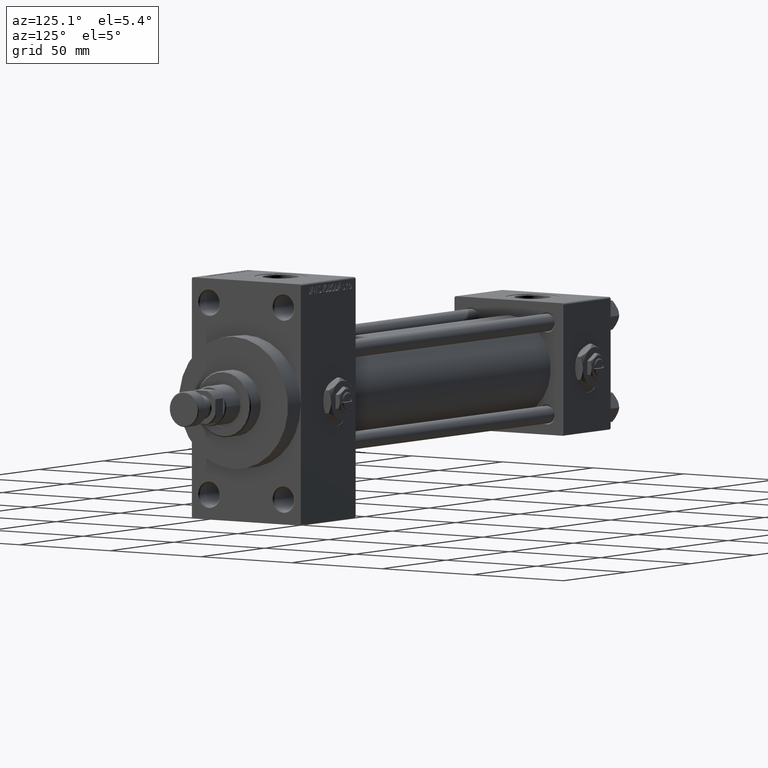
[diagram: clean part render]
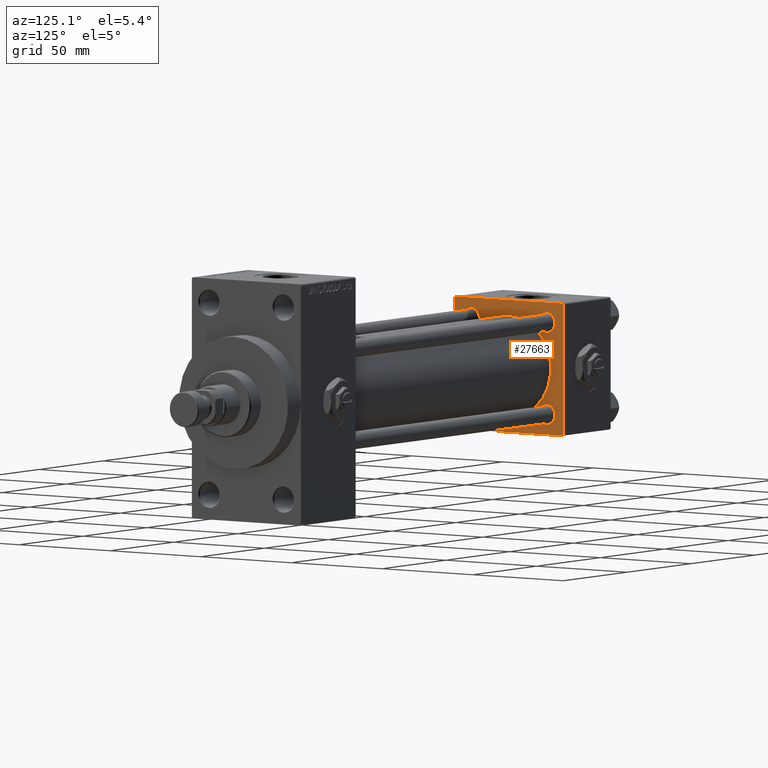
[diagram: same view with one face highlighted and labeled with its STEP entity id]
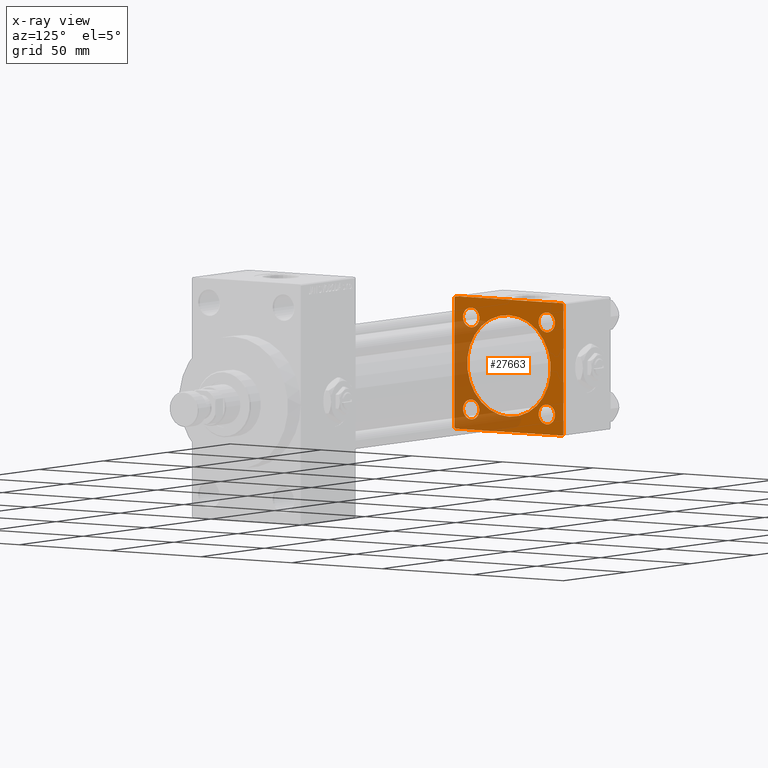
[diagram: x-ray of the same camera — body ghosted, the highlighted face saturated]
A machine part, auxiliary view. The second image highlights one B-rep face of the part: STEP entity #27663.
The next image is the same camera in x-ray: the body ghosted, the highlighted face saturated — about 37% of this face is hidden behind the body in this view.
In plain terms, the highlighted planar face has unit normal (-1, 0, 0).
Its self-contained STEP definition (entity closure, byte-faithful):
#1862 = VECTOR ( 'NONE', #42864, 1000.000000000000000 ) ;
#1875 = DIRECTION ( 'NONE',  ( 1.000000000000000000, -0.000000000000000000, 0.000000000000000000 ) ) ;
#2571 = PLANE ( 'NONE',  #26442 ) ;
#2666 = DIRECTION ( 'NONE',  ( 0.000000000000000000, 0.000000000000000000, 1.000000000000000000 ) ) ;
#2782 = ORIENTED_EDGE ( 'NONE', *, *, #6886, .T. ) ;
#2973 = CIRCLE ( 'NONE', #35108, 4.500000000000031974 ) ;
#4167 = VERTEX_POINT ( 'NONE', #17112 ) ;
#4597 = CIRCLE ( 'NONE', #5378, 4.500000000000031974 ) ;
#4674 = CARTESIAN_POINT ( 'NONE',  ( 37.00000000000000000, 20.84999999999999787, -20.85000000000000142 ) ) ;
#4755 = EDGE_CURVE ( 'NONE', #29886, #16751, #12238, .T. ) ;
#5098 = ORIENTED_EDGE ( 'NONE', *, *, #10984, .T. ) ;
#5334 = DIRECTION ( 'NONE',  ( 0.000000000000000000, 0.000000000000000000, -1.000000000000000000 ) ) ;
#5378 = AXIS2_PLACEMENT_3D ( 'NONE', #49363, #10878, #30240 ) ;
#5836 = VECTOR ( 'NONE', #5334, 1000.000000000000000 ) ;
#5938 = VERTEX_POINT ( 'NONE', #37358 ) ;
#5995 = LINE ( 'NONE', #36687, #35932 ) ;
#6019 = ORIENTED_EDGE ( 'NONE', *, *, #45394, .T. ) ;
#6268 = CIRCLE ( 'NONE', #48027, 4.500000000000031974 ) ;
#6327 = DIRECTION ( 'NONE',  ( -1.000000000000000000, 0.000000000000000000, -0.000000000000000000 ) ) ;
#6480 = VECTOR ( 'NONE', #7021, 1000.000000000000114 ) ;
#6886 = EDGE_CURVE ( 'NONE', #18486, #7325, #15748, .T. ) ;
#6922 = VERTEX_POINT ( 'NONE', #15018 ) ;
#7021 = DIRECTION ( 'NONE',  ( -0.000000000000000000, -0.7071067811865474617, -0.7071067811865474617 ) ) ;
#7128 = EDGE_LOOP ( 'NONE', ( #6019, #19061 ) ) ;
#7325 = VERTEX_POINT ( 'NONE', #47148 ) ;
#7458 = EDGE_CURVE ( 'NONE', #31073, #36544, #43079, .T. ) ;
#9094 = VERTEX_POINT ( 'NONE', #32859 ) ;
#9263 = EDGE_CURVE ( 'NONE', #7325, #18486, #2973, .T. ) ;
#9334 = EDGE_CURVE ( 'NONE', #15330, #9094, #4597, .T. ) ;
#9602 = FACE_BOUND ( 'NONE', #7128, .T. ) ;
#9925 = AXIS2_PLACEMENT_3D ( 'NONE', #9947, #21027, #2666 ) ;
#9947 = CARTESIAN_POINT ( 'NONE',  ( 37.00000000000000711, -2.602085213965210642E-15, 0.000000000000000000 ) ) ;
#10103 = CARTESIAN_POINT ( 'NONE',  ( 37.00000000000000000, 0.000000000000000000, 0.000000000000000000 ) ) ;
#10344 = DIRECTION ( 'NONE',  ( -1.000000000000000000, 0.000000000000000000, -0.000000000000000000 ) ) ;
#10389 = EDGE_LOOP ( 'NONE', ( #28075, #38370 ) ) ;
#10547 = EDGE_CURVE ( 'NONE', #49536, #29886, #5995, .T. ) ;
#10681 = CARTESIAN_POINT ( 'NONE',  ( 37.00000000000000000, -20.84999999999999076, -25.35000000000003695 ) ) ;
#10790 = CARTESIAN_POINT ( 'NONE',  ( 37.00000000000000000, -30.00000000000000000, 29.49999999999999289 ) ) ;
#10878 = DIRECTION ( 'NONE',  ( -1.000000000000000000, 0.000000000000000000, -0.000000000000000000 ) ) ;
#10984 = EDGE_CURVE ( 'NONE', #36544, #31073, #6268, .T. ) ;
#11700 = EDGE_LOOP ( 'NONE', ( #30850, #2782 ) ) ;
#11935 = CARTESIAN_POINT ( 'NONE',  ( 37.00000000000000000, -20.84999999999999076, 25.35000000000003695 ) ) ;
#12012 = CIRCLE ( 'NONE', #46521, 4.500000000000031974 ) ;
#12238 = LINE ( 'NONE', #27574, #31774 ) ;
#12301 = VECTOR ( 'NONE', #21327, 1000.000000000000000 ) ;
#12485 = ORIENTED_EDGE ( 'NONE', *, *, #7458, .T. ) ;
#13422 = CARTESIAN_POINT ( 'NONE',  ( 37.00000000000000711, -2.602085213965210642E-15, 0.000000000000000000 ) ) ;
#13831 = LINE ( 'NONE', #40262, #31586 ) ;
#14118 = EDGE_CURVE ( 'NONE', #5938, #17546, #12012, .T. ) ;
#14543 = CARTESIAN_POINT ( 'NONE',  ( 37.00000000000000000, -20.84999999999999076, -16.34999999999997300 ) ) ;
#15018 = CARTESIAN_POINT ( 'NONE',  ( 37.00000000000000000, 29.49999999999997868, -30.00000000000000000 ) ) ;
#15330 = VERTEX_POINT ( 'NONE', #11935 ) ;
#15479 = DIRECTION ( 'NONE',  ( -1.000000000000000000, 0.000000000000000000, -0.000000000000000000 ) ) ;
#15748 = CIRCLE ( 'NONE', #43860, 4.500000000000031974 ) ;
#16013 = DIRECTION ( 'NONE',  ( 0.000000000000000000, -1.000000000000000000, -1.156482317317871725E-16 ) ) ;
#16751 = VERTEX_POINT ( 'NONE', #32733 ) ;
#17112 = CARTESIAN_POINT ( 'NONE',  ( 37.00000000000000000, -30.00000000000000000, 29.49999999999999289 ) ) ;
#17542 = CARTESIAN_POINT ( 'NONE',  ( 37.00000000000000000, 29.99999999999999289, -30.00000000000000000 ) ) ;
#17546 = VERTEX_POINT ( 'NONE', #29451 ) ;
#18248 = CARTESIAN_POINT ( 'NONE',  ( 37.00000000000000000, -20.84999999999999076, -20.85000000000000497 ) ) ;
#18325 = ORIENTED_EDGE ( 'NONE', *, *, #42242, .T. ) ;
#18346 = VERTEX_POINT ( 'NONE', #42132 ) ;
#18486 = VERTEX_POINT ( 'NONE', #39607 ) ;
#18544 = AXIS2_PLACEMENT_3D ( 'NONE', #29450, #10344, #38001 ) ;
#18752 = CIRCLE ( 'NONE', #9925, 23.00000000000000000 ) ;
#19061 = ORIENTED_EDGE ( 'NONE', *, *, #9334, .T. ) ;
#20222 = CARTESIAN_POINT ( 'NONE',  ( 37.00000000000000000, 29.99999999999999289, 30.00000000000000000 ) ) ;
#20688 = FACE_BOUND ( 'NONE', #11700, .T. ) ;
#20761 = CARTESIAN_POINT ( 'NONE',  ( 37.00000000000000000, 29.99999999999999289, -29.50000000000000000 ) ) ;
#20960 = CIRCLE ( 'NONE', #29773, 4.500000000000031974 ) ;
#21027 = DIRECTION ( 'NONE',  ( 1.000000000000000000, -0.000000000000000000, 0.000000000000000000 ) ) ;
#21327 = DIRECTION ( 'NONE',  ( 0.000000000000000000, -1.000000000000000000, -1.156482317317871725E-16 ) ) ;
#21391 = AXIS2_PLACEMENT_3D ( 'NONE', #34532, #41331, #22458 ) ;
#22200 = CARTESIAN_POINT ( 'NONE',  ( 37.00000000000000000, -30.00000000000000000, -29.50000000000001776 ) ) ;
#22371 = EDGE_LOOP ( 'NONE', ( #5098, #12485 ) ) ;
#22458 = DIRECTION ( 'NONE',  ( 0.000000000000000000, 0.000000000000000000, 1.000000000000000000 ) ) ;
#22710 = VECTOR ( 'NONE', #38895, 999.9999999999998863 ) ;
#22733 = VERTEX_POINT ( 'NONE', #22200 ) ;
#22998 = ORIENTED_EDGE ( 'NONE', *, *, #39684, .T. ) ;
#23334 = CARTESIAN_POINT ( 'NONE',  ( 37.00000000000000000, -20.84999999999999076, 20.85000000000000497 ) ) ;
#23602 = CARTESIAN_POINT ( 'NONE',  ( 37.00000000000000711, -2.602085213965210642E-15, 23.00000000000000000 ) ) ;
#23604 = DIRECTION ( 'NONE',  ( -1.000000000000000000, 0.000000000000000000, -0.000000000000000000 ) ) ;
#23838 = VERTEX_POINT ( 'NONE', #29151 ) ;
#24938 = FACE_BOUND ( 'NONE', #41999, .T. ) ;
#25173 = CARTESIAN_POINT ( 'NONE',  ( 37.00000000000000000, -30.00000000000000000, 29.99999999999999289 ) ) ;
#25421 = LINE ( 'NONE', #25173, #5836 ) ;
#25686 = DIRECTION ( 'NONE',  ( -0.000000000000000000, 0.000000000000000000, 1.000000000000000000 ) ) ;
#25792 = CIRCLE ( 'NONE', #32231, 23.00000000000000000 ) ;
#26442 = AXIS2_PLACEMENT_3D ( 'NONE', #10103, #6327, #25686 ) ;
#26542 = CIRCLE ( 'NONE', #18544, 4.500000000000031974 ) ;
#27574 = CARTESIAN_POINT ( 'NONE',  ( 37.00000000000000000, 29.99999999999999289, 30.00000000000000000 ) ) ;
#27663 = ADVANCED_FACE ( 'NONE', ( #39808, #20688, #9602, #24938, #40301, #33484 ), #2571, .F. ) ;
#28075 = ORIENTED_EDGE ( 'NONE', *, *, #46492, .F. ) ;
#29151 = CARTESIAN_POINT ( 'NONE',  ( 37.00000000000000711, 2.146024240737016609E-16, -23.00000000000000000 ) ) ;
#29329 = DIRECTION ( 'NONE',  ( 0.000000000000000000, 0.000000000000000000, 1.000000000000000000 ) ) ;
#29450 = CARTESIAN_POINT ( 'NONE',  ( 37.00000000000000000, 20.84999999999999787, 20.85000000000000142 ) ) ;
#29451 = CARTESIAN_POINT ( 'NONE',  ( 37.00000000000000000, 20.84999999999999787, 25.35000000000003340 ) ) ;
#29773 = AXIS2_PLACEMENT_3D ( 'NONE', #23334, #38687, #29329 ) ;
#29886 = VERTEX_POINT ( 'NONE', #43494 ) ;
#30145 = ORIENTED_EDGE ( 'NONE', *, *, #44839, .T. ) ;
#30240 = DIRECTION ( 'NONE',  ( 0.000000000000000000, 0.000000000000000000, 1.000000000000000000 ) ) ;
#30615 = CARTESIAN_POINT ( 'NONE',  ( 37.00000000000000000, 20.84999999999999787, -20.85000000000000142 ) ) ;
#30850 = ORIENTED_EDGE ( 'NONE', *, *, #9263, .T. ) ;
#31058 = VERTEX_POINT ( 'NONE', #49505 ) ;
#31073 = VERTEX_POINT ( 'NONE', #14543 ) ;
#31341 = LINE ( 'NONE', #20761, #22710 ) ;
#31586 = VECTOR ( 'NONE', #32948, 1000.000000000000114 ) ;
#31774 = VECTOR ( 'NONE', #16013, 1000.000000000000000 ) ;
#32231 = AXIS2_PLACEMENT_3D ( 'NONE', #13422, #1875, #36326 ) ;
#32733 = CARTESIAN_POINT ( 'NONE',  ( 37.00000000000000000, -29.49999999999998579, 29.99999999999999289 ) ) ;
#32838 = ORIENTED_EDGE ( 'NONE', *, *, #10547, .T. ) ;
#32859 = CARTESIAN_POINT ( 'NONE',  ( 37.00000000000000000, -20.84999999999999076, 16.34999999999997300 ) ) ;
#32948 = DIRECTION ( 'NONE',  ( 0.000000000000000000, 0.7071067811865474617, -0.7071067811865474617 ) ) ;
#33339 = DIRECTION ( 'NONE',  ( 0.000000000000000000, 0.000000000000000000, 1.000000000000000000 ) ) ;
#33348 = EDGE_CURVE ( 'NONE', #16751, #4167, #37953, .T. ) ;
#33354 = ORIENTED_EDGE ( 'NONE', *, *, #33348, .T. ) ;
#33484 = FACE_OUTER_BOUND ( 'NONE', #45984, .T. ) ;
#33509 = VERTEX_POINT ( 'NONE', #23602 ) ;
#34333 = DIRECTION ( 'NONE',  ( -1.000000000000000000, 0.000000000000000000, -0.000000000000000000 ) ) ;
#34532 = CARTESIAN_POINT ( 'NONE',  ( 37.00000000000000000, -20.84999999999999076, -20.85000000000000497 ) ) ;
#34645 = DIRECTION ( 'NONE',  ( -1.000000000000000000, 0.000000000000000000, -0.000000000000000000 ) ) ;
#35108 = AXIS2_PLACEMENT_3D ( 'NONE', #4674, #15479, #46667 ) ;
#35932 = VECTOR ( 'NONE', #36933, 1000.000000000000114 ) ;
#36326 = DIRECTION ( 'NONE',  ( 0.000000000000000000, 0.000000000000000000, 1.000000000000000000 ) ) ;
#36544 = VERTEX_POINT ( 'NONE', #10681 ) ;
#36687 = CARTESIAN_POINT ( 'NONE',  ( 37.00000000000000000, 29.49999999999999289, 30.00000000000000000 ) ) ;
#36933 = DIRECTION ( 'NONE',  ( 0.000000000000000000, -0.7071067811865474617, 0.7071067811865474617 ) ) ;
#37358 = CARTESIAN_POINT ( 'NONE',  ( 37.00000000000000000, 20.84999999999999787, 16.34999999999996945 ) ) ;
#37953 = LINE ( 'NONE', #10790, #6480 ) ;
#38001 = DIRECTION ( 'NONE',  ( 0.000000000000000000, 0.000000000000000000, 1.000000000000000000 ) ) ;
#38370 = ORIENTED_EDGE ( 'NONE', *, *, #40753, .F. ) ;
#38456 = DIRECTION ( 'NONE',  ( 0.000000000000000000, 0.000000000000000000, 1.000000000000000000 ) ) ;
#38687 = DIRECTION ( 'NONE',  ( -1.000000000000000000, 0.000000000000000000, -0.000000000000000000 ) ) ;
#38847 = LINE ( 'NONE', #20222, #1862 ) ;
#38895 = DIRECTION ( 'NONE',  ( -0.000000000000000000, 0.7071067811865574537, 0.7071067811865376918 ) ) ;
#38943 = EDGE_CURVE ( 'NONE', #6922, #18346, #31341, .T. ) ;
#39089 = ORIENTED_EDGE ( 'NONE', *, *, #4755, .T. ) ;
#39607 = CARTESIAN_POINT ( 'NONE',  ( 37.00000000000000000, 20.84999999999999787, -16.34999999999996945 ) ) ;
#39684 = EDGE_CURVE ( 'NONE', #22733, #31058, #13831, .T. ) ;
#39808 = FACE_BOUND ( 'NONE', #22371, .T. ) ;
#39912 = ORIENTED_EDGE ( 'NONE', *, *, #38943, .T. ) ;
#39938 = EDGE_CURVE ( 'NONE', #6922, #31058, #47249, .T. ) ;
#40160 = EDGE_CURVE ( 'NONE', #49536, #18346, #38847, .T. ) ;
#40262 = CARTESIAN_POINT ( 'NONE',  ( 37.00000000000000000, -29.50000000000001066, -30.00000000000000711 ) ) ;
#40301 = FACE_BOUND ( 'NONE', #10389, .T. ) ;
#40753 = EDGE_CURVE ( 'NONE', #23838, #33509, #18752, .T. ) ;
#41189 = ORIENTED_EDGE ( 'NONE', *, *, #39938, .F. ) ;
#41331 = DIRECTION ( 'NONE',  ( -1.000000000000000000, 0.000000000000000000, -0.000000000000000000 ) ) ;
#41422 = ORIENTED_EDGE ( 'NONE', *, *, #40160, .F. ) ;
#41999 = EDGE_LOOP ( 'NONE', ( #43761, #30145 ) ) ;
#42132 = CARTESIAN_POINT ( 'NONE',  ( 37.00000000000000000, 29.99999999999999289, -29.50000000000000000 ) ) ;
#42242 = EDGE_CURVE ( 'NONE', #4167, #22733, #25421, .T. ) ;
#42437 = DIRECTION ( 'NONE',  ( 0.000000000000000000, 0.000000000000000000, 1.000000000000000000 ) ) ;
#42864 = DIRECTION ( 'NONE',  ( 0.000000000000000000, 0.000000000000000000, -1.000000000000000000 ) ) ;
#43079 = CIRCLE ( 'NONE', #21391, 4.500000000000031974 ) ;
#43494 = CARTESIAN_POINT ( 'NONE',  ( 37.00000000000000000, 29.49999999999999289, 30.00000000000000000 ) ) ;
#43761 = ORIENTED_EDGE ( 'NONE', *, *, #14118, .T. ) ;
#43860 = AXIS2_PLACEMENT_3D ( 'NONE', #30615, #34645, #42437 ) ;
#44772 = CARTESIAN_POINT ( 'NONE',  ( 37.00000000000000000, 29.99999999999999289, 29.50000000000000000 ) ) ;
#44839 = EDGE_CURVE ( 'NONE', #17546, #5938, #26542, .T. ) ;
#45394 = EDGE_CURVE ( 'NONE', #9094, #15330, #20960, .T. ) ;
#45984 = EDGE_LOOP ( 'NONE', ( #41189, #39912, #41422, #32838, #39089, #33354, #18325, #22998 ) ) ;
#46492 = EDGE_CURVE ( 'NONE', #33509, #23838, #25792, .T. ) ;
#46500 = CARTESIAN_POINT ( 'NONE',  ( 37.00000000000000000, 20.84999999999999787, 20.85000000000000142 ) ) ;
#46521 = AXIS2_PLACEMENT_3D ( 'NONE', #46500, #23604, #38456 ) ;
#46667 = DIRECTION ( 'NONE',  ( 0.000000000000000000, 0.000000000000000000, 1.000000000000000000 ) ) ;
#47148 = CARTESIAN_POINT ( 'NONE',  ( 37.00000000000000000, 20.84999999999999787, -25.35000000000003340 ) ) ;
#47249 = LINE ( 'NONE', #17542, #12301 ) ;
#48027 = AXIS2_PLACEMENT_3D ( 'NONE', #18248, #34333, #33339 ) ;
#49363 = CARTESIAN_POINT ( 'NONE',  ( 37.00000000000000000, -20.84999999999999076, 20.85000000000000497 ) ) ;
#49505 = CARTESIAN_POINT ( 'NONE',  ( 37.00000000000000000, -29.50000000000000000, -30.00000000000000711 ) ) ;
#49536 = VERTEX_POINT ( 'NONE', #44772 ) ;